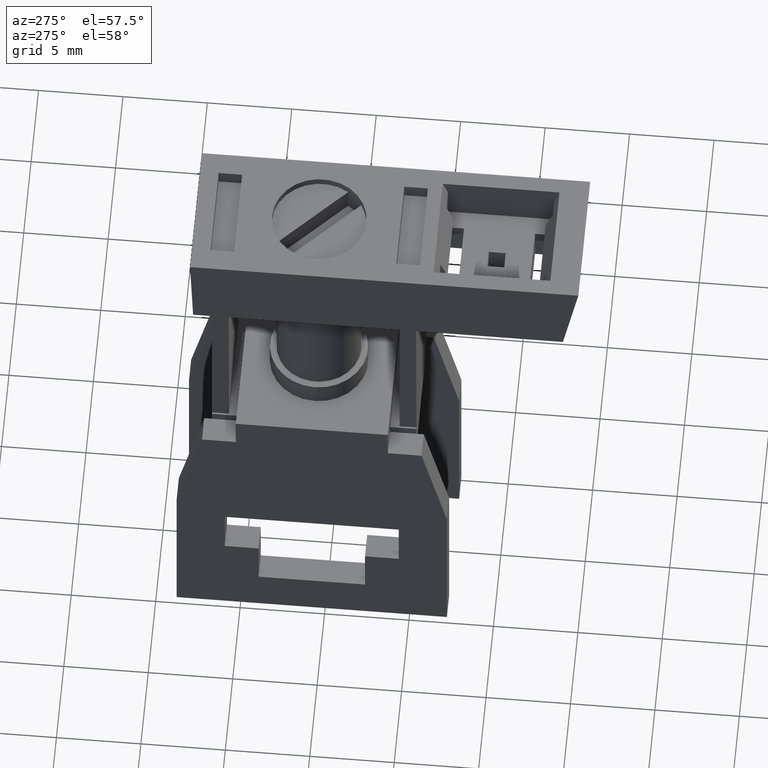
[diagram: clean part render]
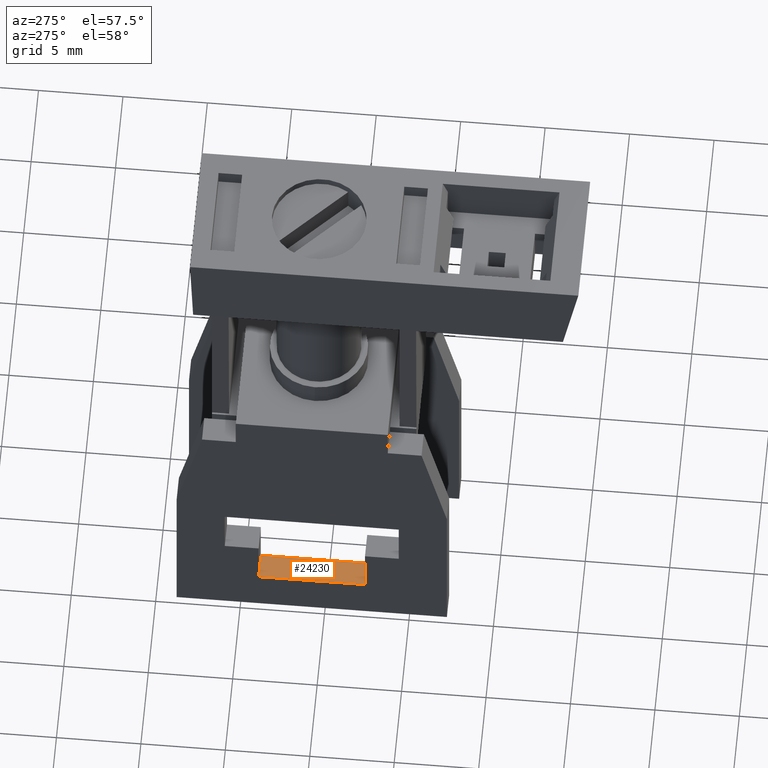
[diagram: same view with one face highlighted and labeled with its STEP entity id]
A machine part, auxiliary view. The second image highlights one B-rep face of the part: STEP entity #24230.
In plain terms, the highlighted planar face has unit normal (0, 0, -1).
Its self-contained STEP definition (entity closure, byte-faithful):
#19550=CARTESIAN_POINT('',(-9.80000000000001,2.89999999999998,
4.85000000000002));
#19560=VERTEX_POINT('',#19550);
#19590=CARTESIAN_POINT('',(-9.80000000000001,2.89999999999998,
3.5527136788005E-15));
#19600=DIRECTION('',(0.,-6.12323399573677E-17,1.));
#19610=VECTOR('',#19600,1.);
#19620=LINE('',#19590,#19610);
#19630=CARTESIAN_POINT('',(-9.80000000000001,2.89999999999998,11.15));
#19640=VERTEX_POINT('',#19630);
#19650=EDGE_CURVE('',#19560,#19640,#19620,.T.);
#21580=CARTESIAN_POINT('',(-8.30000000000001,2.89999999999998,11.15));
#21590=VERTEX_POINT('',#21580);
#21620=CARTESIAN_POINT('',(-8.30000000000001,2.89999999999998,
3.5527136788005E-15));
#21630=DIRECTION('',(0.,6.12323399573677E-17,-1.));
#21640=VECTOR('',#21630,1.);
#21650=LINE('',#21620,#21640);
#21660=CARTESIAN_POINT('',(-8.30000000000001,2.89999999999998,
4.85000000000002));
#21670=VERTEX_POINT('',#21660);
#21680=EDGE_CURVE('',#21590,#21670,#21650,.T.);
#23900=CARTESIAN_POINT('',(-10.7800024,2.89999999999998,11.15));
#23910=DIRECTION('',(1.,0.,0.));
#23920=VECTOR('',#23910,1.);
#23930=LINE('',#23900,#23920);
#23940=EDGE_CURVE('',#19640,#21590,#23930,.T.);
#24070=CARTESIAN_POINT('',(-10.7800024,2.89999999999998,4.85000000000002
));
#24080=DIRECTION('',(-0.,-1.,-6.12323399573677E-17));
#24090=DIRECTION('',(0.,-6.12323399573677E-17,1.));
#24100=AXIS2_PLACEMENT_3D('',#24070,#24080,#24090);
#24110=PLANE('',#24100);
#24120=CARTESIAN_POINT('',(-10.7800024,2.89999999999998,4.85000000000002
));
#24130=DIRECTION('',(1.,0.,0.));
#24140=VECTOR('',#24130,1.);
#24150=LINE('',#24120,#24140);
#24160=EDGE_CURVE('',#19560,#21670,#24150,.T.);
#24170=ORIENTED_EDGE('',*,*,#24160,.F.);
#24180=ORIENTED_EDGE('',*,*,#21680,.T.);
#24190=ORIENTED_EDGE('',*,*,#23940,.T.);
#24200=ORIENTED_EDGE('',*,*,#19650,.T.);
#24210=EDGE_LOOP('',(#24200,#24190,#24180,#24170));
#24220=FACE_OUTER_BOUND('',#24210,.T.);
#24230=ADVANCED_FACE('',(#24220),#24110,.F.);